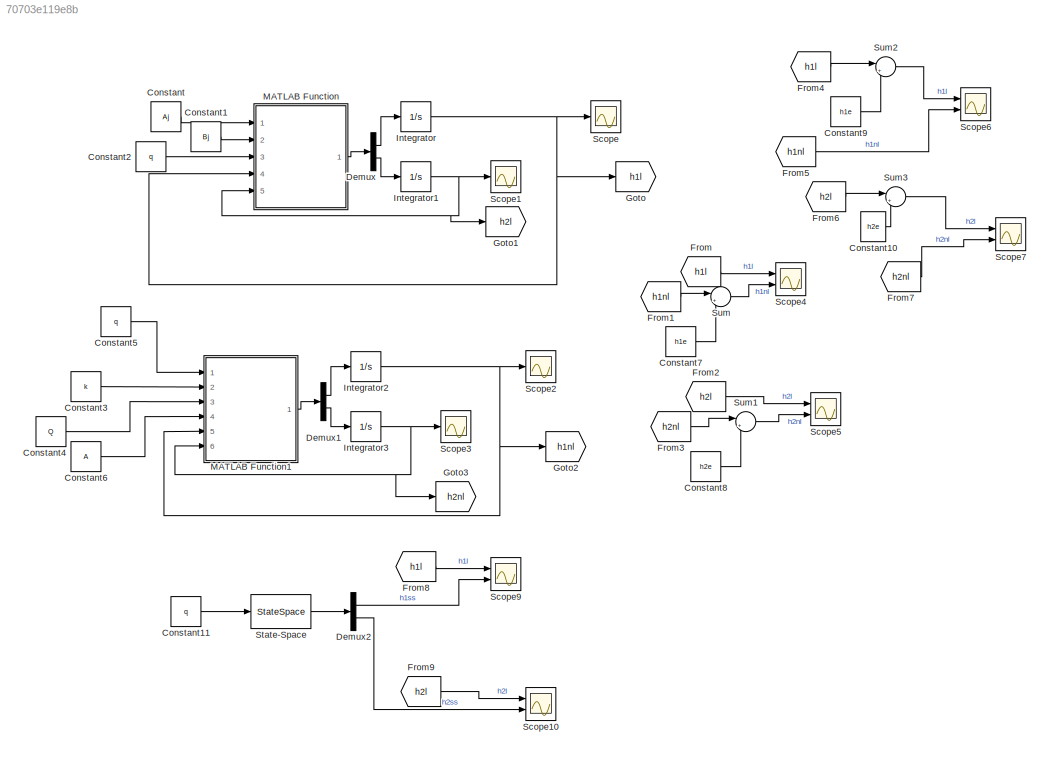
MODEL slx_70703e119e8b
KIND model
CONFIG AbsTol = auto
CONFIG EnableMultiTasking = off
CONFIG FixedStep = auto
CONFIG InitFcn = tanques_lineal_non_lineal
CONFIG MaxStep = auto
CONFIG MinStep = auto
CONFIG RelTol = 1e-3
CONFIG SampleTimeConstraint = Unconstrained
CONFIG Solver = VariableStepAuto
CONFIG SolverName = VariableStepAuto
CONFIG StartTime = 0.0
CONFIG StopTime = t(end)+10
BLOCK [Constant] Constant
  Value = Aj
BLOCK [Constant] Constant1
  Value = Bj
BLOCK [Constant] Constant10
  Value = h2e
BLOCK [Constant] Constant11
  Value = q
BLOCK [Constant] Constant2
  Value = q
BLOCK [Constant] Constant3
  Value = k
BLOCK [Constant] Constant4
  Value = Q
BLOCK [Constant] Constant5
  Value = q
BLOCK [Constant] Constant6
  Value = A
BLOCK [Constant] Constant7
  Value = h1e
BLOCK [Constant] Constant8
  Value = h2e
BLOCK [Constant] Constant9
  Value = h1e
BLOCK [Demux] Demux
  DisplayOption = bar
  Outputs = 2
  Ports = [1, 2]
BLOCK [Demux] Demux1
  DisplayOption = bar
  Outputs = 2
  Ports = [1, 2]
BLOCK [Demux] Demux2
  DisplayOption = bar
  Outputs = 2
  Ports = [1, 2]
BLOCK [From] From
  GotoTag = h1l
BLOCK [From] From1
  GotoTag = h1nl
BLOCK [From] From2
  GotoTag = h2l
BLOCK [From] From3
  GotoTag = h2nl
BLOCK [From] From4
  GotoTag = h1l
BLOCK [From] From5
  GotoTag = h1nl
BLOCK [From] From6
  GotoTag = h2l
BLOCK [From] From7
  GotoTag = h2nl
BLOCK [From] From8
  GotoTag = h1l
BLOCK [From] From9
  GotoTag = h2l
BLOCK [Goto] Goto
  GotoTag = h1l
BLOCK [Goto] Goto1
  GotoTag = h2l
BLOCK [Goto] Goto2
  GotoTag = h1nl
BLOCK [Goto] Goto3
  GotoTag = h2nl
BLOCK [Integrator] Integrator
  InitialCondition = Xini(1,1)
  Ports = [1, 1]
BLOCK [Integrator] Integrator1
  InitialCondition = Xini(1,2)
  Ports = [1, 1]
BLOCK [Integrator] Integrator2
  InitialCondition = X0(1,1)
  Ports = [1, 1]
BLOCK [Integrator] Integrator3
  InitialCondition = X0(1,2)
  Ports = [1, 1]
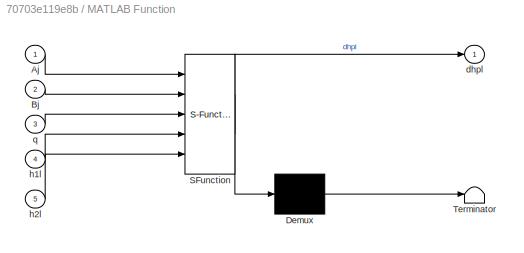
BLOCK [SubSystem] MATLAB Function
  ErrorFcn = Stateflow.Translate.translate
  PermitHierarchicalResolution = ExplicitOnly
  Ports = [5, 1]
  RequestExecContextInheritance = off
  SFBlockType = MATLAB Function
  TreatAsAtomicUnit = on
BLOCK [Demux] MATLAB Function/ Demux 
  Outputs = 1
  Ports = [1, 1]
BLOCK [S-Function] MATLAB Function/ SFunction 
  EnableBusSupport = on
  FunctionName = sf_sfun
  PortCounts = [5 2]
  Ports = [5, 2]
  SFcnIsStateOwnerBlock = off
  SFunctionDeploymentMode = off
  Tag = Stateflow S-Function tanques_nl 2
BLOCK [Terminator] MATLAB Function/ Terminator 
BLOCK [Inport] MATLAB Function/Aj
  IconDisplay = Port number
BLOCK [Inport] MATLAB Function/Bj
  IconDisplay = Port number
  Port = 2
BLOCK [Outport] MATLAB Function/dhpl
  IconDisplay = Port number
BLOCK [Inport] MATLAB Function/h1l
  IconDisplay = Port number
  Port = 4
BLOCK [Inport] MATLAB Function/h2l
  IconDisplay = Port number
  Port = 5
BLOCK [Inport] MATLAB Function/q
  IconDisplay = Port number
  Port = 3
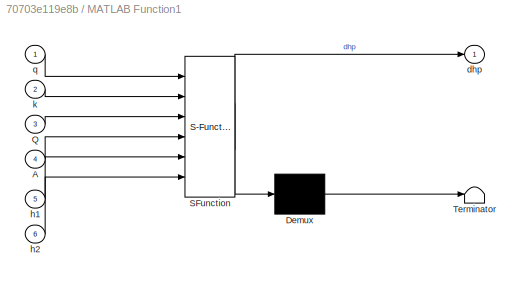
BLOCK [SubSystem] MATLAB Function1
  ErrorFcn = Stateflow.Translate.translate
  PermitHierarchicalResolution = ExplicitOnly
  Ports = [6, 1]
  RequestExecContextInheritance = off
  SFBlockType = MATLAB Function
  TreatAsAtomicUnit = on
BLOCK [Demux] MATLAB Function1/ Demux 
  Outputs = 1
  Ports = [1, 1]
BLOCK [S-Function] MATLAB Function1/ SFunction 
  EnableBusSupport = on
  FunctionName = sf_sfun
  PortCounts = [6 2]
  Ports = [6, 2]
  SFcnIsStateOwnerBlock = off
  SFunctionDeploymentMode = off
  Tag = Stateflow S-Function tanques_nl 1
BLOCK [Terminator] MATLAB Function1/ Terminator 
BLOCK [Inport] MATLAB Function1/A
  IconDisplay = Port number
  Port = 4
BLOCK [Inport] MATLAB Function1/Q
  IconDisplay = Port number
  Port = 3
BLOCK [Outport] MATLAB Function1/dhp
  IconDisplay = Port number
BLOCK [Inport] MATLAB Function1/h1
  IconDisplay = Port number
  Port = 5
BLOCK [Inport] MATLAB Function1/h2
  IconDisplay = Port number
  Port = 6
BLOCK [Inport] MATLAB Function1/k
  IconDisplay = Port number
  Port = 2
BLOCK [Inport] MATLAB Function1/q
  IconDisplay = Port number
BLOCK [Scope] Scope
  Floating = off
  NumInputPorts = 1
  Ports = [1]
  ScopeSpecificationString = Simulink.scopes.TimeScopeBlockCfg('CurrentConfiguration', extmgr.ConfigurationSet(extmgr.Configuration('Core','General UI',true),extmgr.Configuration('Core','Source UI',true),extmgr.Configuration('Sources','WiredSimulink',true),extmgr.Configuration('Visuals','Time Domain',true,'SerializedDisplays',{struct('MinYLimReal','-0.00051','MaxYLimReal','0.04541','YLabelReal','','MinYLimMag','0.00000','MaxY...<+1363ch>
BLOCK [Scope] Scope1
  Floating = off
  NumInputPorts = 1
  Ports = [1]
  ScopeSpecificationString = Simulink.scopes.TimeScopeBlockCfg('CurrentConfiguration', extmgr.ConfigurationSet(extmgr.Configuration('Core','General UI',true),extmgr.Configuration('Core','Source UI',true),extmgr.Configuration('Sources','WiredSimulink',true,'DataLoggingVariableName','ScopeData1'),extmgr.Configuration('Visuals','Time Domain',true,'SerializedDisplays',{struct('MinYLimReal','-2.32143','MaxYLimReal','0.48469','YLab...<+1370ch>
BLOCK [Scope] Scope10
  Floating = off
  NumInputPorts = 2
  Ports = [2]
  ScopeSpecificationString = Simulink.scopes.TimeScopeBlockCfg('CurrentConfiguration', extmgr.ConfigurationSet(extmgr.Configuration('Core','General UI',true),extmgr.Configuration('Core','Source UI',true),extmgr.Configuration('Sources','WiredSimulink',true,'DataLoggingVariableName','ScopeData2'),extmgr.Configuration('Visuals','Time Domain',true,'SerializedDisplays',{struct('MinYLimReal','-0.02321','MaxYLimReal','0.00485','YLab...<+1412ch>
BLOCK [Scope] Scope2
  Floating = off
  NumInputPorts = 1
  Ports = [1]
  ScopeSpecificationString = Simulink.scopes.TimeScopeBlockCfg('CurrentConfiguration', extmgr.ConfigurationSet(extmgr.Configuration('Core','General UI',true),extmgr.Configuration('Core','Source UI',true),extmgr.Configuration('Sources','WiredSimulink',true,'DataLoggingVariableName','ScopeData2'),extmgr.Configuration('Visuals','Time Domain',true,'SerializedDisplays',{struct('MinYLimReal','36.17334','MaxYLimReal','41.78686','YLa...<+1409ch>
BLOCK [Scope] Scope3
  Floating = off
  NumInputPorts = 1
  Ports = [1]
  ScopeSpecificationString = Simulink.scopes.TimeScopeBlockCfg('CurrentConfiguration', extmgr.ConfigurationSet(extmgr.Configuration('Core','General UI',true),extmgr.Configuration('Core','Source UI',true),extmgr.Configuration('Sources','WiredSimulink',true,'DataLoggingVariableName','ScopeData3'),extmgr.Configuration('Visuals','Time Domain',true,'SerializedDisplays',{struct('MinYLimReal','18.08667','MaxYLimReal','20.89343','YLa...<+1376ch>
BLOCK [Scope] Scope4
  Floating = off
  NumInputPorts = 2
  Ports = [2]
  ScopeSpecificationString = Simulink.scopes.TimeScopeBlockCfg('CurrentConfiguration', extmgr.ConfigurationSet(extmgr.Configuration('Core','General UI',true),extmgr.Configuration('Core','Source UI',true),extmgr.Configuration('Sources','WiredSimulink',true,'DataLoggingVariableName','ScopeData4'),extmgr.Configuration('Visuals','Time Domain',true,'SerializedDisplays',{struct('MinYLimReal','-0.04643','MaxYLimReal','0.00971','YLab...<+1400ch>
BLOCK [Scope] Scope5
  Floating = off
  NumInputPorts = 2
  Ports = [2]
  ScopeSpecificationString = Simulink.scopes.TimeScopeBlockCfg('CurrentConfiguration', extmgr.ConfigurationSet(extmgr.Configuration('Core','General UI',true),extmgr.Configuration('Core','Source UI',true),extmgr.Configuration('Sources','WiredSimulink',true,'DataLoggingVariableName','ScopeData5'),extmgr.Configuration('Visuals','Time Domain',true,'SerializedDisplays',{struct('MinYLimReal','-0.02321','MaxYLimReal','0.00485','YLab...<+1367ch>
BLOCK [Scope] Scope6
  Floating = off
  NumInputPorts = 2
  Ports = [2]
  ScopeSpecificationString = Simulink.scopes.TimeScopeBlockCfg('CurrentConfiguration', extmgr.ConfigurationSet(extmgr.Configuration('Core','General UI',true),extmgr.Configuration('Core','Source UI',true),extmgr.Configuration('Sources','WiredSimulink',true,'DataLoggingVariableName','ScopeData6'),extmgr.Configuration('Visuals','Time Domain',true,'SerializedDisplays',{struct('MinYLimReal','0.36173','MaxYLimReal','0.41787','YLabe...<+1442ch>
BLOCK [Scope] Scope7
  Floating = off
  NumInputPorts = 2
  Ports = [2]
  ScopeSpecificationString = Simulink.scopes.TimeScopeBlockCfg('CurrentConfiguration', extmgr.ConfigurationSet(extmgr.Configuration('Core','General UI',true),extmgr.Configuration('Core','Source UI',true),extmgr.Configuration('Sources','WiredSimulink',true,'DataLoggingVariableName','ScopeData7'),extmgr.Configuration('Visuals','Time Domain',true,'SerializedDisplays',{struct('MinYLimReal','0.18087','MaxYLimReal','0.20893','YLabe...<+1365ch>
BLOCK [Scope] Scope9
  Floating = off
  NumInputPorts = 2
  Ports = [2]
  ScopeSpecificationString = Simulink.scopes.TimeScopeBlockCfg('CurrentConfiguration', extmgr.ConfigurationSet(extmgr.Configuration('Core','General UI',true),extmgr.Configuration('Core','Source UI',true),extmgr.Configuration('Sources','WiredSimulink',true,'DataLoggingVariableName','ScopeData3'),extmgr.Configuration('Visuals','Time Domain',true,'SerializedDisplays',{struct('MinYLimReal','-0.04643','MaxYLimReal','0.00969','YLab...<+1445ch>
BLOCK [StateSpace] State-Space
  A = Aj
  B = Bj
  C = eye(2)
  D = zeros(2,1)
  InitialCondition = Xini
  Ports = [1, 1]
BLOCK [Sum] Sum
  IconShape = round
  InputSameDT = off
  Inputs = |+-
  OutDataTypeStr = Inherit: Inherit via internal rule
  Ports = [2, 1]
  SaturateOnIntegerOverflow = off
BLOCK [Sum] Sum1
  IconShape = round
  InputSameDT = off
  Inputs = |+-
  OutDataTypeStr = Inherit: Inherit via internal rule
  Ports = [2, 1]
  SaturateOnIntegerOverflow = off
BLOCK [Sum] Sum2
  IconShape = round
  InputSameDT = off
  Inputs = |++
  OutDataTypeStr = Inherit: Inherit via internal rule
  Ports = [2, 1]
  SaturateOnIntegerOverflow = off
BLOCK [Sum] Sum3
  IconShape = round
  InputSameDT = off
  Inputs = |++
  OutDataTypeStr = Inherit: Inherit via internal rule
  Ports = [2, 1]
  SaturateOnIntegerOverflow = off
LINE Constant10:1 -> Sum3:2
LINE Constant11:1 -> State-Space:1
LINE Constant1:1 -> MATLAB Function:2
LINE Constant2:1 -> MATLAB Function:3
LINE Constant3:1 -> MATLAB Function1:2
LINE Constant4:1 -> MATLAB Function1:3
LINE Constant5:1 -> MATLAB Function1:1
LINE Constant6:1 -> MATLAB Function1:4
LINE Constant7:1 -> Sum:2
LINE Constant8:1 -> Sum1:2
LINE Constant9:1 -> Sum2:2
LINE Constant:1 -> MATLAB Function:1
LINE Demux1:1 -> Integrator2:1
LINE Demux1:2 -> Integrator3:1
LINE Demux2:1 -> Scope9:2
LINE Demux2:2 -> Scope10:2
LINE Demux:1 -> Integrator:1
LINE Demux:2 -> Integrator1:1
LINE From1:1 -> Sum:1
LINE From2:1 -> Scope5:1
LINE From3:1 -> Sum1:1
LINE From4:1 -> Sum2:1
LINE From5:1 -> Scope6:2
LINE From6:1 -> Sum3:1
LINE From7:1 -> Scope7:2
LINE From8:1 -> Scope9:1
LINE From9:1 -> Scope10:1
LINE From:1 -> Scope4:1
NET Integrator1:1 -> Goto1:1, MATLAB Function:5, Scope1:1
NET Integrator2:1 -> Goto2:1, MATLAB Function1:5, Scope2:1
NET Integrator3:1 -> Goto3:1, MATLAB Function1:6, Scope3:1
NET Integrator:1 -> Goto:1, MATLAB Function:4, Scope:1
LINE MATLAB Function1:1 -> Demux1:1
LINE MATLAB Function:1 -> Demux:1
LINE State-Space:1 -> Demux2:1
LINE Sum1:1 -> Scope5:2
LINE Sum2:1 -> Scope6:1
LINE Sum3:1 -> Scope7:1
LINE Sum:1 -> Scope4:2
note: NET lines group one-source signal fan-out (src -> all destinations, sorted); 1:1 wires keep LINE
CHART MATLAB Function1 states=1 transitions=1
  STATE_LABEL 'eML_blk_kernel()'
  STATE_LABEL 'SCRIPT:\nfunction dhp  = fcn(q,k,Q,A,h1,h2)\n\nq1=Q+q; %Entrada del sistema\n\n\n\nq12=k*sqrt(abs(h1-h2));\nq2=k*sqrt(h2);\nh1p=(q1-q12)/A;\nh2p=(q12-q2)/A;\n\ndhp=[h1p;h2p];'
CHART MATLAB Function states=1 transitions=1
  STATE_LABEL 'eML_blk_kernel()'
  STATE_LABEL 'SCRIPT:\nfunction dhpl   = fcn(Aj,Bj,q,h1l,h2l)\n\nh=[h1l ; h2l];\ndhpl=Aj*h+Bj*q;'
